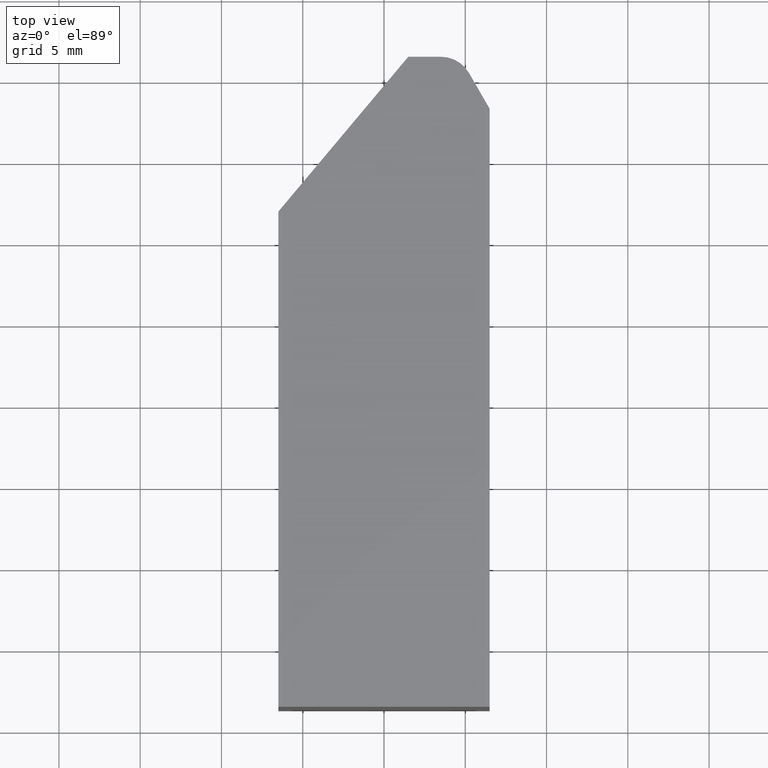
[diagram: clean part render]
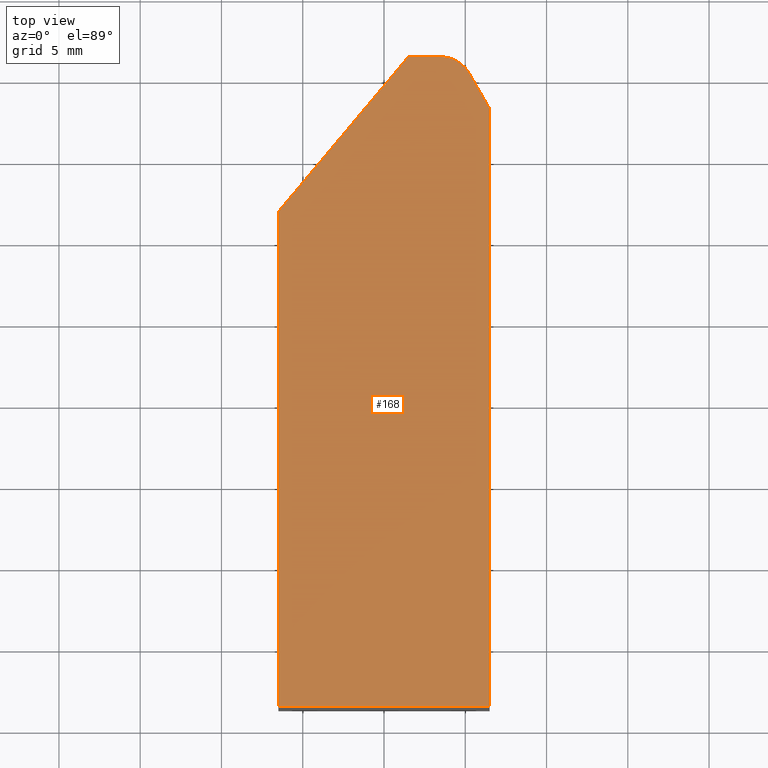
[diagram: same view with one face highlighted and labeled with its STEP entity id]
A machine part, top view. The second image highlights one B-rep face of the part: STEP entity #168.
In plain terms, the highlighted planar face has unit normal (0, 0, 1).
Its self-contained STEP definition (entity closure, byte-faithful):
#25=FACE_OUTER_BOUND('',#34,.T.);
#34=EDGE_LOOP('',(#145,#146,#147,#148,#149,#150,#151));
#36=CIRCLE('',#198,2.00000000000001);
#43=LINE('',#265,#62);
#46=LINE('',#270,#65);
#48=LINE('',#274,#67);
#51=LINE('',#282,#70);
#53=LINE('',#286,#72);
#55=LINE('',#289,#74);
#62=VECTOR('',#217,10.);
#65=VECTOR('',#222,10.);
#67=VECTOR('',#226,10.);
#70=VECTOR('',#235,10.);
#72=VECTOR('',#239,10.);
#74=VECTOR('',#243,10.);
#82=VERTEX_POINT('',#263);
#83=VERTEX_POINT('',#264);
#84=VERTEX_POINT('',#269);
#85=VERTEX_POINT('',#273);
#86=VERTEX_POINT('',#277);
#87=VERTEX_POINT('',#281);
#88=VERTEX_POINT('',#285);
#96=EDGE_CURVE('',#82,#83,#43,.T.);
#99=EDGE_CURVE('',#83,#84,#46,.T.);
#101=EDGE_CURVE('',#84,#85,#48,.T.);
#103=EDGE_CURVE('',#85,#86,#36,.T.);
#105=EDGE_CURVE('',#86,#87,#51,.T.);
#107=EDGE_CURVE('',#87,#88,#53,.T.);
#109=EDGE_CURVE('',#88,#82,#55,.T.);
#145=ORIENTED_EDGE('',*,*,#96,.F.);
#146=ORIENTED_EDGE('',*,*,#109,.F.);
#147=ORIENTED_EDGE('',*,*,#107,.F.);
#148=ORIENTED_EDGE('',*,*,#105,.F.);
#149=ORIENTED_EDGE('',*,*,#103,.F.);
#150=ORIENTED_EDGE('',*,*,#101,.F.);
#151=ORIENTED_EDGE('',*,*,#99,.F.);
#159=PLANE('',#202);
#168=ADVANCED_FACE('',(#25),#159,.T.);
#198=AXIS2_PLACEMENT_3D('',#278,#230,#231);
#202=AXIS2_PLACEMENT_3D('',#290,#244,#245);
#217=DIRECTION('',(-2.18619565072233E-16,1.,0.));
#222=DIRECTION('',(0.642787609686539,0.766044443118978,0.));
#226=DIRECTION('',(1.,0.,0.));
#230=DIRECTION('center_axis',(0.,0.,-1.));
#231=DIRECTION('ref_axis',(-0.866025403784439,-0.5,0.));
#235=DIRECTION('',(0.499999999999999,-0.866025403784439,0.));
#239=DIRECTION('',(-1.50853749567614E-16,-1.,0.));
#243=DIRECTION('',(-1.,-3.85414216364287E-16,0.));
#244=DIRECTION('center_axis',(0.,0.,1.));
#245=DIRECTION('ref_axis',(1.,0.,0.));
#263=CARTESIAN_POINT('',(-6.5,-13.6599409950749,8.));
#264=CARTESIAN_POINT('',(-6.5,16.8100590049251,8.));
#265=CARTESIAN_POINT('',(-6.5,-13.6599409950749,8.));
#269=CARTESIAN_POINT('',(1.49661948511947,26.3400590049251,8.));
#270=CARTESIAN_POINT('',(-6.5,16.8100590049251,8.));
#273=CARTESIAN_POINT('',(3.49661948511947,26.3400590049251,8.));
#274=CARTESIAN_POINT('',(1.49661948511947,26.3400590049251,8.));
#277=CARTESIAN_POINT('',(5.22867029268835,25.3400590049251,8.));
#278=CARTESIAN_POINT('Origin',(3.49661948511947,24.3400590049251,8.));
#281=CARTESIAN_POINT('',(6.5,23.1380513586897,8.));
#282=CARTESIAN_POINT('',(5.22867029268835,25.3400590049251,8.));
#285=CARTESIAN_POINT('',(6.5,-13.6599409950749,8.));
#286=CARTESIAN_POINT('',(6.5,23.1380513586897,8.));
#289=CARTESIAN_POINT('',(5.02238788800455,-13.6599409950749,8.));
#290=CARTESIAN_POINT('Origin',(0.394768987886831,4.85101726977802,8.));